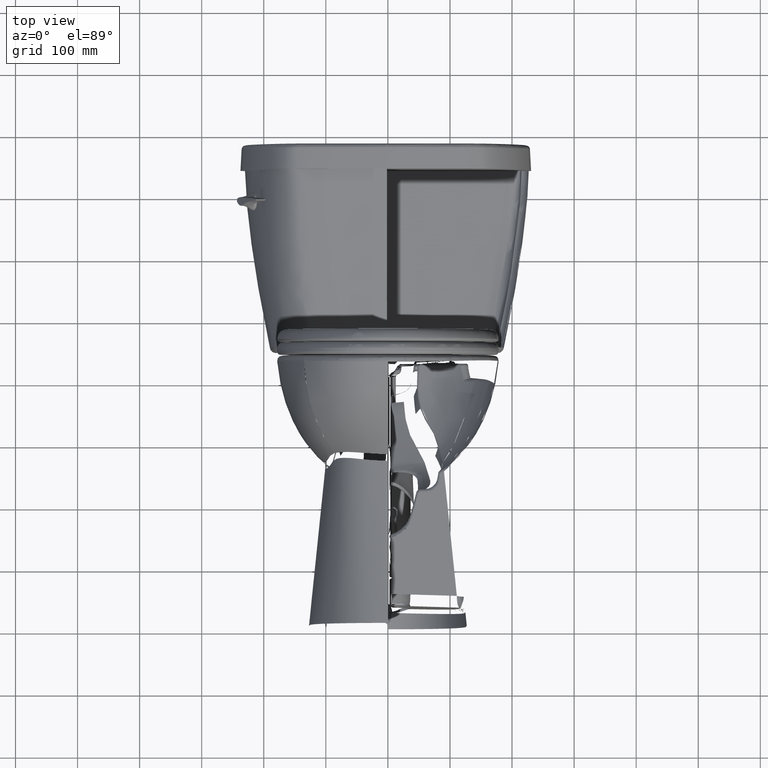
[diagram: clean part render]
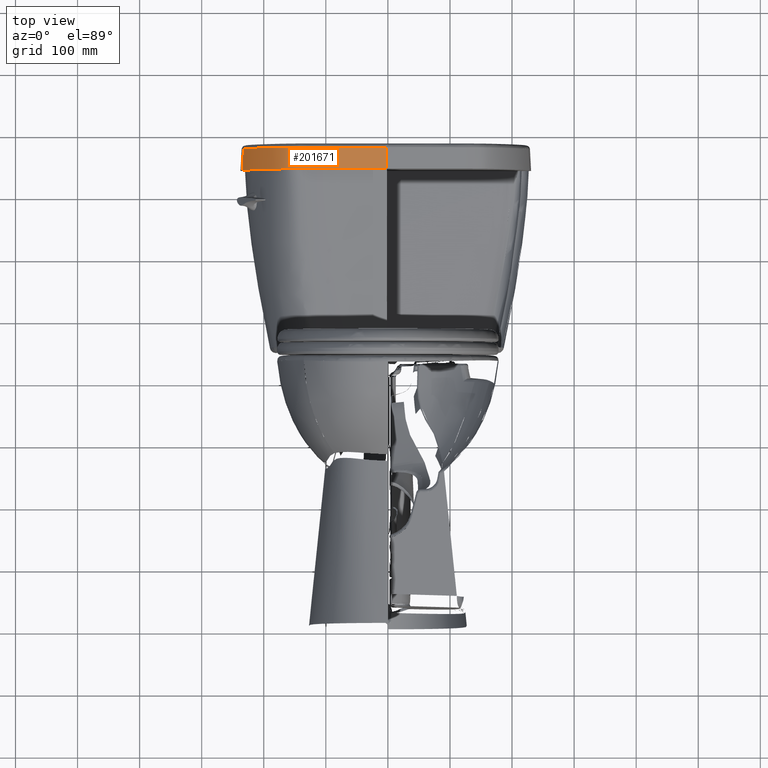
[diagram: same view with one face highlighted and labeled with its STEP entity id]
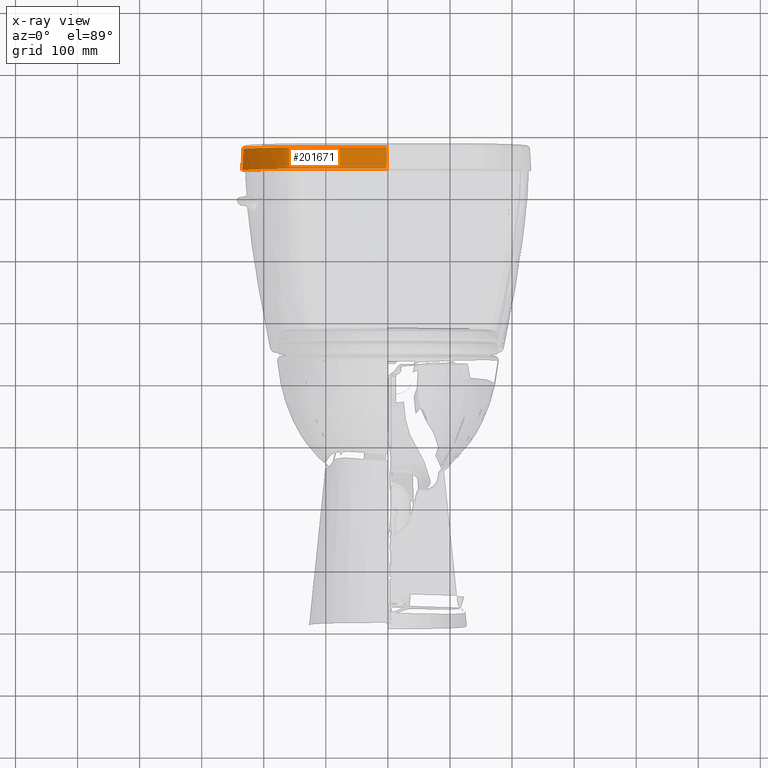
[diagram: x-ray of the same camera — body ghosted, the highlighted face saturated]
A machine part, top view. The second image highlights one B-rep face of the part: STEP entity #201671.
The next image is the same camera in x-ray: the body ghosted, the highlighted face saturated — about 0% of this face is hidden behind the body in this view.
In plain terms, the highlighted face is a freeform B-spline surface patch.
Its self-contained STEP definition (entity closure, byte-faithful):
#463 = CARTESIAN_POINT ( 'NONE',  ( -7.394844773976379000, 9.814377538845276300, 29.35590368022165500 ) ) ;
#1232 = CARTESIAN_POINT ( 'NONE',  ( -7.334836410566929900, 9.853938189715355700, 30.72716702226692600 ) ) ;
#2043 = CARTESIAN_POINT ( 'NONE',  ( -6.573769690913385600, 8.890552196837402800, 30.72716702283425100 ) ) ;
#2824 = CARTESIAN_POINT ( 'NONE',  ( -0.06327540398421259400, 8.144003682902756200, 30.72716702770236500 ) ) ;
#3607 = CARTESIAN_POINT ( 'NONE',  ( -8.874723170444882600, 13.26844839627992000, 30.72716702112204600 ) ) ;
#4400 = CARTESIAN_POINT ( 'NONE',  ( -5.850028966925196800, 8.430925996149213100, 30.72716702337441000 ) ) ;
#5484 = CARTESIAN_POINT ( 'NONE',  ( -5.039755826007875000, 8.231776056590550900, 29.35590368198031500 ) ) ;
#6261 = CARTESIAN_POINT ( 'NONE',  ( -7.240393396204725100, 9.588536752392519300, 29.35590368033701500 ) ) ;
#7840 = CARTESIAN_POINT ( 'NONE',  ( -6.015476080874016400, 8.415504344839764200, 29.35590368125078700 ) ) ;
#8600 = CARTESIAN_POINT ( 'NONE',  ( -5.871656456779527700, 8.362302139305512600, 29.35590368135827100 ) ) ;
#12401 = CARTESIAN_POINT ( 'NONE',  ( -0.08855453651539167700, 8.071997726936739800, 29.35590368570880700 ) ) ;
#12428 = CARTESIAN_POINT ( 'NONE',  ( -7.683224440023622900, 10.27691001581496300, 29.35590368000708500 ) ) ;
#13198 = CARTESIAN_POINT ( 'NONE',  ( -5.039755826007875000, 8.231776056590550900, 29.35590368198031500 ) ) ;
#14253 = CARTESIAN_POINT ( 'NONE',  ( -0.08895492052590056600, 8.143432810364680900, 30.71898767474748100 ) ) ;
#15019 = CARTESIAN_POINT ( 'NONE',  ( -6.936280250251925800, 9.303819493808385100, 30.71898766962832600 ) ) ;
#15794 = CARTESIAN_POINT ( 'NONE',  ( -6.054670585153695900, 8.512012217098263300, 30.71898767028592300 ) ) ;
#16589 = CARTESIAN_POINT ( 'NONE',  ( -4.365214944995866400, 8.249905939252945700, 30.71898767154902600 ) ) ;
#17940 = CARTESIAN_POINT ( 'NONE',  ( -6.085764783834646300, 8.447625068744487800, 29.35590368119802900 ) ) ;
#18728 = CARTESIAN_POINT ( 'NONE',  ( -6.992198503177165800, 9.259359699896457100, 29.35590368052165600 ) ) ;
#19522 = CARTESIAN_POINT ( 'NONE',  ( -5.367851655240158100, 8.338650010559449700, 30.72716702373504600 ) ) ;
#20298 = CARTESIAN_POINT ( 'NONE',  ( -2.226265052144882400, 8.162274668791338800, 30.72716702608464700 ) ) ;
#21090 = CARTESIAN_POINT ( 'NONE',  ( -7.408347902826771600, 9.967540687325589800, 30.72716702221220700 ) ) ;
#21885 = CARTESIAN_POINT ( 'NONE',  ( -7.102107380980315900, 9.519804956283071100, 30.72716702244015600 ) ) ;
#22669 = CARTESIAN_POINT ( 'NONE',  ( -8.430776281259841900, 12.00872331068819000, 30.72716702145157400 ) ) ;
#23711 = CARTESIAN_POINT ( 'NONE',  ( -5.655914518433070800, 8.308325283343700500, 29.35590368151929000 ) ) ;
#24500 = CARTESIAN_POINT ( 'NONE',  ( -4.370146060366142400, 8.178639721470473100, 29.35590368248070800 ) ) ;
#25293 = CARTESIAN_POINT ( 'NONE',  ( -0.08855621981209335600, 8.071997717613896800, 29.35590368568347600 ) ) ;
#26070 = CARTESIAN_POINT ( 'NONE',  ( -5.799464465437008400, 8.341576496050395300, 29.35590368141220800 ) ) ;
#30697 = CARTESIAN_POINT ( 'NONE',  ( -8.062577761232283500, 10.99867149519449000, 29.35590367972480400 ) ) ;
#32516 = CARTESIAN_POINT ( 'NONE',  ( -6.416888059000590300, 8.746931945899355300, 30.71898767001538000 ) ) ;
#33268 = CARTESIAN_POINT ( 'NONE',  ( -6.671087508906970800, 8.990793828501129100, 30.71898766982598200 ) ) ;
#34027 = CARTESIAN_POINT ( 'NONE',  ( -5.987405642848138100, 8.481287754516957400, 30.71898767033632900 ) ) ;
#34805 = CARTESIAN_POINT ( 'NONE',  ( -7.998215824511513400, 11.02970988272904800, 30.71898766883734700 ) ) ;
#35929 = VERTEX_POINT ( 'NONE', #174448 ) ;
#36150 = CARTESIAN_POINT ( 'NONE',  ( -6.404975079362205100, 8.645598433367716500, 29.35590368095984500 ) ) ;
#37726 = CARTESIAN_POINT ( 'NONE',  ( -5.166945689877953100, 8.316253643626771100, 30.72716702388504100 ) ) ;
#38014 = CARTESIAN_POINT ( 'NONE',  ( -9.016450329389764200, 13.50837074369763800, 29.35590367901653900 ) ) ;
#38528 = CARTESIAN_POINT ( 'NONE',  ( -7.752018407444882800, 10.54882465640000100, 30.72716702195630100 ) ) ;
#39345 = CARTESIAN_POINT ( 'NONE',  ( -6.670772527649606200, 8.991084733014961500, 30.72716702276181200 ) ) ;
#40140 = CARTESIAN_POINT ( 'NONE',  ( -9.016450329389764200, 13.50837074369763800, 29.35590367901653900 ) ) ;
#40940 = EDGE_LOOP ( 'NONE', ( #175265, #166305, #180774, #201368 ) ) ;
#41203 = CARTESIAN_POINT ( 'NONE',  ( -6.283163321677165800, 8.559149098585432800, 29.35590368105079100 ) ) ;
#42786 = CARTESIAN_POINT ( 'NONE',  ( -5.376128434153543800, 8.267262656462598600, 29.35590368172874100 ) ) ;
#46836 = B_SPLINE_SURFACE_WITH_KNOTS ( 'NONE', 1, 3, ( 
 ( #139414, #48951, #144161, #49690, #162411, #176722, #72616, #195038, #67921, #107598, #85335, #212607, #90096, #121135, #13198, #71849, #103633, #86117, #216492, #234737, #54407, #126616, #181497, #17940, #182269, #55175, #36150, #211845, #109161, #198984, #230801, #193505, #217274, #108368, #18728, #199779, #90863, #67151, #463, #127391, #12428, #145716, #30697, #157680, #163962, #194262, #218821, #59156, #110708, #40140, #148078, #203732, #74169 ),
 ( #93223, #167919, #2824, #184635, #113086, #130566, #20298, #146477, #73401, #109941, #75754, #94003, #221205, #128156, #165531, #37726, #19522, #91625, #202935, #55968, #56766, #4400, #183051, #164740, #201359, #57565, #166331, #183860, #131356, #2043, #39345, #92420, #112288, #221986, #202151, #128951, #21885, #147292, #1232, #21090, #219616, #38528, #220403, #148868, #74951, #22669, #149647, #111497, #3607, #167134, #129767, #58355, #185451 ) ),
 .UNSPECIFIED., .F., .F., .F.,
 ( 2, 2 ),
 ( 4, 3, 2, 2, 2, 2, 2, 2, 2, 2, 2, 2, 2, 2, 2, 2, 2, 2, 2, 2, 2, 2, 2, 2, 2, 4 ),
 ( 0.1668306279719999900, 0.8806789820920000200 ),
 ( -0.006000394961881000200, 0.0000000000000000000, 0.1250000000000000000, 0.2500000000000000000, 0.3125000000000000000, 0.3437500000000000000, 0.3750000000000000000, 0.4062500000000000000, 0.4218750000000000000, 0.4375000000000000000, 0.4531250000000000000, 0.4687500000000000000, 0.4843750000000000000, 0.5000000000000000000, 0.5156250000000000000, 0.5312500000000000000, 0.5468750000000000000, 0.5625000000000000000, 0.5937500000000000000, 0.6250000000000000000, 0.6875000000000000000, 0.7500000000000000000, 0.8125000000000000000, 0.8750000000000000000, 0.9375000000000000000, 1.000000000000000000 ),
 .UNSPECIFIED. ) ;
#47560 = DIRECTION ( 'NONE',  ( -0.05173752758674615000, -0.007891794699233210100, -0.9986295348204136100 ) ) ;
#48339 = EDGE_CURVE ( 'NONE', #180117, #61341, #142599, .T. ) ;
#48951 = CARTESIAN_POINT ( 'NONE',  ( -0.03712507201232283200, 8.072282525522835400, 29.35590368572165700 ) ) ;
#49690 = CARTESIAN_POINT ( 'NONE',  ( -0.08855958640551181400, 8.071997698970866600, 29.35590368568346900 ) ) ;
#49984 = CARTESIAN_POINT ( 'NONE',  ( -5.642251355499555900, 8.378488029529668400, 30.71898767059426300 ) ) ;
#50730 = CARTESIAN_POINT ( 'NONE',  ( -9.163591568707424500, 14.58498170078712200, 30.71898766804979200 ) ) ;
#51239 = CARTESIAN_POINT ( 'NONE',  ( -0.08855453651539167700, 8.071997726936739800, 29.35590368570880700 ) ) ;
#51484 = CARTESIAN_POINT ( 'NONE',  ( -7.102452624445827000, 9.519550753591749600, 30.71898766950430100 ) ) ;
#52251 = CARTESIAN_POINT ( 'NONE',  ( -5.166989425946020700, 8.315827202173338200, 30.71898767094941700 ) ) ;
#53040 = CARTESIAN_POINT ( 'NONE',  ( -8.112087092729026900, 11.27316820641764700, 30.71898766875269600 ) ) ;
#54407 = CARTESIAN_POINT ( 'NONE',  ( -5.799464465437008400, 8.341576496050395300, 29.35590368141220800 ) ) ;
#55175 = CARTESIAN_POINT ( 'NONE',  ( -6.283163321677165800, 8.559149098585432800, 29.35590368105079100 ) ) ;
#55465 = CARTESIAN_POINT ( 'NONE',  ( -8.780848370578739900, 12.73524243035590700, 29.35590367919133600 ) ) ;
#55968 = CARTESIAN_POINT ( 'NONE',  ( -5.642169368011811200, 8.378909049707875300, 30.72716702352992300 ) ) ;
#56248 = CARTESIAN_POINT ( 'NONE',  ( -7.468979549909450500, 9.928946406463779800, 29.35590368016653400 ) ) ;
#56766 = CARTESIAN_POINT ( 'NONE',  ( -5.780775517031496100, 8.411015103963386300, 30.72716702342637500 ) ) ;
#57565 = CARTESIAN_POINT ( 'NONE',  ( -6.243912704901574400, 8.619416780058662300, 30.72716702308032000 ) ) ;
#57829 = CARTESIAN_POINT ( 'NONE',  ( -9.234210945515535200, 14.57420975922839200, 29.35590368045584600 ) ) ;
#58355 = CARTESIAN_POINT ( 'NONE',  ( -9.122131490185040500, 14.31601786087559000, 30.72716702093937300 ) ) ;
#59156 = CARTESIAN_POINT ( 'NONE',  ( -8.780848370578739900, 12.73524243035590700, 29.35590367919133600 ) ) ;
#60219 = CARTESIAN_POINT ( 'NONE',  ( -6.723578936059055000, 8.942314775418109800, 29.35590368072204700 ) ) ;
#61002 = CARTESIAN_POINT ( 'NONE',  ( -4.236281670657480600, 8.169627138600395400, 29.35590368258110800 ) ) ;
#61341 = VERTEX_POINT ( 'NONE', #83929 ) ;
#67151 = CARTESIAN_POINT ( 'NONE',  ( -7.240393396204725100, 9.588536752392519300, 29.35590368033701500 ) ) ;
#67304 = CARTESIAN_POINT ( 'NONE',  ( -9.198689377031497500, 14.57962804918051200, 30.04153534988248400 ) ) ;
#67921 = CARTESIAN_POINT ( 'NONE',  ( -3.566393889946851000, 8.132151935959449000, 29.35590368308189100 ) ) ;
#68209 = CARTESIAN_POINT ( 'NONE',  ( -6.717426826963413000, 9.042073839321830100, 30.71898766979133200 ) ) ;
#68976 = CARTESIAN_POINT ( 'NONE',  ( -5.780886993434547700, 8.410600914460843600, 30.71898767049069800 ) ) ;
#69720 = CARTESIAN_POINT ( 'NONE',  ( -7.408709560303761600, 9.967310478995216300, 30.71898766927634100 ) ) ;
#70492 = CARTESIAN_POINT ( 'NONE',  ( -2.760636719723525100, 8.172469147903557400, 30.71898767274905100 ) ) ;
#71274 = CARTESIAN_POINT ( 'NONE',  ( -8.875134724634854400, 13.26832809890897200, 30.71898766818614100 ) ) ;
#71849 = CARTESIAN_POINT ( 'NONE',  ( -5.174278014003937700, 8.244761003902361600, 29.35590368187952800 ) ) ;
#72616 = CARTESIAN_POINT ( 'NONE',  ( -2.227610177728346600, 8.090421929640552200, 29.35590368408346500 ) ) ;
#73401 = CARTESIAN_POINT ( 'NONE',  ( -3.563150350158268000, 8.203945079109056200, 30.72716702508464700 ) ) ;
#73670 = CARTESIAN_POINT ( 'NONE',  ( -7.815259718751969200, 10.51465102142638000, 29.35590367990866400 ) ) ;
#74169 = CARTESIAN_POINT ( 'NONE',  ( -9.234210945598427100, 14.57420975921575000, 29.35590367885591000 ) ) ;
#74951 = CARTESIAN_POINT ( 'NONE',  ( -8.327783893185039000, 11.76239484433661400, 30.72716702152795400 ) ) ;
#75754 = CARTESIAN_POINT ( 'NONE',  ( -4.231609108984251600, 8.241340576218110700, 30.72716702458464500 ) ) ;
#76034 = CARTESIAN_POINT ( 'NONE',  ( -8.177030743503937800, 11.24339532183307000, 29.35590367963976600 ) ) ;
#79166 = CARTESIAN_POINT ( 'NONE',  ( -0.08855790310880258500, 8.071997708292382600, 29.35590368568347200 ) ) ;
#79954 = CARTESIAN_POINT ( 'NONE',  ( -6.770767130125984900, 8.994545491981496000, 29.35590368068701000 ) ) ;
#80742 = CARTESIAN_POINT ( 'NONE',  ( -5.174278014003937700, 8.244761003902361600, 29.35590368187952800 ) ) ;
#83929 = CARTESIAN_POINT ( 'NONE',  ( -9.234210945515535200, 14.57420975922839200, 29.35590368045584600 ) ) ;
#85335 = CARTESIAN_POINT ( 'NONE',  ( -4.236281670657480600, 8.169627138600395400, 29.35590368258110800 ) ) ;
#86117 = CARTESIAN_POINT ( 'NONE',  ( -5.444712578622047200, 8.275290445675985000, 29.35590368167716900 ) ) ;
#86406 = CARTESIAN_POINT ( 'NONE',  ( -2.226273075590527600, 8.161846079405986400, 30.71898767314904400 ) ) ;
#87195 = CARTESIAN_POINT ( 'NONE',  ( -8.947362416051030100, 13.52663743178338900, 30.71898766813259800 ) ) ;
#88728 = CARTESIAN_POINT ( 'NONE',  ( -1.158403017494239500, 8.145683290152414100, 30.71898767394747400 ) ) ;
#90096 = CARTESIAN_POINT ( 'NONE',  ( -4.637553417401575100, 8.198051141128347700, 29.35590368228110600 ) ) ;
#90863 = CARTESIAN_POINT ( 'NONE',  ( -7.159987229429134500, 9.477188035997244200, 29.35590368039685300 ) ) ;
#91625 = CARTESIAN_POINT ( 'NONE',  ( -5.435644053748031700, 8.346594151313778900, 30.72716702368425200 ) ) ;
#92420 = CARTESIAN_POINT ( 'NONE',  ( -6.717106751921259700, 9.042359039009054900, 30.72716702272716600 ) ) ;
#92928 = CARTESIAN_POINT ( 'NONE',  ( -9.163591568707424500, 14.58498170078712200, 30.71898766804979200 ) ) ;
#93223 = CARTESIAN_POINT ( 'NONE',  ( -0.01191112550811023800, 8.144288119428347600, 30.72716702774094700 ) ) ;
#94003 = CARTESIAN_POINT ( 'NONE',  ( -4.365185355232283900, 8.250333580948032300, 30.72716702448464700 ) ) ;
#94285 = CARTESIAN_POINT ( 'NONE',  ( -8.062577761232283500, 10.99867149519449000, 29.35590367972480400 ) ) ;
#96663 = CARTESIAN_POINT ( 'NONE',  ( -4.771448086720472900, 8.208429058583858400, 29.35590368218071300 ) ) ;
#97464 = CARTESIAN_POINT ( 'NONE',  ( -5.444712578622047200, 8.275290445675985000, 29.35590368167716900 ) ) ;
#98255 = CARTESIAN_POINT ( 'NONE',  ( -2.227610177728346600, 8.090421929640552200, 29.35590368408346500 ) ) ;
#103146 = CARTESIAN_POINT ( 'NONE',  ( -0.08895442262833573600, 8.143432813121863800, 30.71898767474748100 ) ) ;
#103633 = CARTESIAN_POINT ( 'NONE',  ( -5.376128434153543800, 8.267262656462598600, 29.35590368172874100 ) ) ;
#103920 = CARTESIAN_POINT ( 'NONE',  ( -0.6239688823479422300, 8.140470094001328100, 30.71898767434747800 ) ) ;
#104687 = CARTESIAN_POINT ( 'NONE',  ( -6.523233282829910900, 8.840900360729312600, 30.71898766993622900 ) ) ;
#106227 = CARTESIAN_POINT ( 'NONE',  ( -5.435698145958680200, 8.346168836820082100, 30.71898767074862100 ) ) ;
#106997 = CARTESIAN_POINT ( 'NONE',  ( -6.182951239804576300, 8.580904133280199600, 30.71898767019023100 ) ) ;
#107598 = CARTESIAN_POINT ( 'NONE',  ( -3.834379650434252000, 8.145133143857874500, 29.35590368288149700 ) ) ;
#108368 = CARTESIAN_POINT ( 'NONE',  ( -6.906003570370079300, 9.152882103423229100, 29.35590368058622300 ) ) ;
#109161 = CARTESIAN_POINT ( 'NONE',  ( -6.572195845618110400, 8.788835875487796700, 29.35590368083504100 ) ) ;
#109941 = CARTESIAN_POINT ( 'NONE',  ( -3.830609658984645400, 8.216901588505905400, 30.72716702488465000 ) ) ;
#110708 = CARTESIAN_POINT ( 'NONE',  ( -8.943719969874015500, 13.24828061819015800, 29.35590367907047200 ) ) ;
#111497 = CARTESIAN_POINT ( 'NONE',  ( -8.712853055240158200, 12.75856483783425200, 30.72716702124212400 ) ) ;
#112288 = CARTESIAN_POINT ( 'NONE',  ( -6.806985548874015600, 9.146117523398819700, 30.72716702266023600 ) ) ;
#113086 = CARTESIAN_POINT ( 'NONE',  ( -0.6239668923555119500, 8.140898773318111700, 30.72716702728307300 ) ) ;
#114155 = CARTESIAN_POINT ( 'NONE',  ( -5.584732990169292100, 8.295832525187401900, 29.35590368157244300 ) ) ;
#114937 = CARTESIAN_POINT ( 'NONE',  ( -6.085764783834646300, 8.447625068744487800, 29.35590368119802900 ) ) ;
#115735 = CARTESIAN_POINT ( 'NONE',  ( -7.034768101578740700, 9.313465118329922600, 29.35590368049015800 ) ) ;
#115760 = EDGE_CURVE ( 'NONE', #180248, #35929, #223221, .T. ) ;
#121135 = CARTESIAN_POINT ( 'NONE',  ( -4.771448086720472900, 8.208429058583858400, 29.35590368218071300 ) ) ;
#122165 = CARTESIAN_POINT ( 'NONE',  ( -4.765703139255176500, 8.279635300308852300, 30.71898767124981700 ) ) ;
#122689 = CARTESIAN_POINT ( 'NONE',  ( -0.08868783383291876900, 8.095809422320998600, 29.81026501538836400 ) ) ;
#122934 = CARTESIAN_POINT ( 'NONE',  ( -8.623737736699386100, 12.50671580569433100, 30.71898766837276500 ) ) ;
#123720 = CARTESIAN_POINT ( 'NONE',  ( -4.231636980021030500, 8.240912817742744400, 30.71898767164902800 ) ) ;
#124484 = CARTESIAN_POINT ( 'NONE',  ( -5.573008927340758600, 8.366313392200657600, 30.71898767064584800 ) ) ;
#125255 = CARTESIAN_POINT ( 'NONE',  ( -7.621273267933983000, 10.31254361303517400, 30.71898766911806800 ) ) ;
#126616 = CARTESIAN_POINT ( 'NONE',  ( -5.871656456779527700, 8.362302139305512600, 29.35590368135827100 ) ) ;
#127391 = CARTESIAN_POINT ( 'NONE',  ( -7.468979549909450500, 9.928946406463779800, 29.35590368016653400 ) ) ;
#128156 = CARTESIAN_POINT ( 'NONE',  ( -4.765668665992126100, 8.280062582110236500, 30.72716702418543700 ) ) ;
#128951 = CARTESIAN_POINT ( 'NONE',  ( -6.978083256204725700, 9.357644492963780500, 30.72716702253267600 ) ) ;
#129767 = CARTESIAN_POINT ( 'NONE',  ( -9.070551016787403500, 14.05078413422598500, 30.72716702097716600 ) ) ;
#130566 = CARTESIAN_POINT ( 'NONE',  ( -1.158398066391732200, 8.146111926037008300, 30.72716702688307300 ) ) ;
#130850 = CARTESIAN_POINT ( 'NONE',  ( -8.393918645192913500, 11.73425703243071000, 29.35590367947834900 ) ) ;
#131356 = CARTESIAN_POINT ( 'NONE',  ( -6.522939476956692900, 8.841212780069293200, 30.72716702287204500 ) ) ;
#131627 = CARTESIAN_POINT ( 'NONE',  ( -8.690835586074802800, 12.48216616890157500, 29.35590367925787800 ) ) ;
#133214 = CARTESIAN_POINT ( 'NONE',  ( -4.637553417401575100, 8.198051141128347700, 29.35590368228110600 ) ) ;
#134792 = CARTESIAN_POINT ( 'NONE',  ( -6.219454138381890700, 8.519421676052363800, 29.35590368109842500 ) ) ;
#136600 = FACE_OUTER_BOUND ( 'NONE', #40940, .T. ) ;
#139014 = EDGE_CURVE ( 'NONE', #35929, #180117, #148421, .T. ) ;
#139414 = CARTESIAN_POINT ( 'NONE',  ( -0.01140781431015748000, 8.072424937801574900, 29.35590368574094500 ) ) ;
#141265 = CARTESIAN_POINT ( 'NONE',  ( -9.070970872891182400, 14.05069693187080800, 30.71898766804125800 ) ) ;
#142021 = CARTESIAN_POINT ( 'NONE',  ( -6.244146828164200100, 8.619057293574716300, 30.71898767014455000 ) ) ;
#142561 = CARTESIAN_POINT ( 'NONE',  ( -0.08882112920390011800, 8.119621117716041800, 30.26462634506792400 ) ) ;
#142599 = LINE ( 'NONE', #67304, #148307 ) ;
#142794 = CARTESIAN_POINT ( 'NONE',  ( -0.08895516947468297400, 8.143432808986087700, 30.71898767474748100 ) ) ;
#143566 = CARTESIAN_POINT ( 'NONE',  ( -6.807313483570180100, 9.145841397105915100, 30.71898766972439200 ) ) ;
#144161 = CARTESIAN_POINT ( 'NONE',  ( -0.06284232870893700900, 8.072140112249607900, 29.35590368570275600 ) ) ;
#145716 = CARTESIAN_POINT ( 'NONE',  ( -7.815259718751969200, 10.51465102142638000, 29.35590367990866400 ) ) ;
#146477 = CARTESIAN_POINT ( 'NONE',  ( -2.760625700186220700, 8.172897703983071700, 30.72716702568464700 ) ) ;
#147292 = CARTESIAN_POINT ( 'NONE',  ( -7.181763125496063400, 9.630112468321261300, 30.72716702238070900 ) ) ;
#147576 = CARTESIAN_POINT ( 'NONE',  ( -9.140939626811023900, 14.03616471458070900, 29.35590367892441300 ) ) ;
#148078 = CARTESIAN_POINT ( 'NONE',  ( -9.140939626811023900, 14.03616471458070900, 29.35590367892441300 ) ) ;
#148307 = VECTOR ( 'NONE', #47560, 39.37007874015748900 ) ;
#148421 = B_SPLINE_CURVE_WITH_KNOTS ( 'NONE', 3,
 ( #103146, #233388, #14253, #142794, #103920, #88728, #86406, #70492, #215912, #161064, #123720, #16589, #158760, #122165, #177768, #52251, #213630, #106227, #124484, #49984, #68976, #234155, #34027, #15794, #106997, #142021, #179338, #32516, #104687, #161841, #33268, #68209, #143566, #197633, #15019, #160282, #51484, #177012, #195321, #69720, #125255, #231851, #34805, #53040, #159508, #180108, #122934, #196073, #71274, #87195, #141265, #231089, #50730 ),
 .UNSPECIFIED., .F., .F.,
 ( 4, 3, 2, 2, 2, 2, 2, 2, 2, 2, 2, 2, 2, 2, 2, 2, 2, 2, 2, 2, 2, 2, 2, 2, 2, 4 ),
 ( -5.816411250204156900E-008, 0.0000000000000000000, 0.1250000000000000000, 0.2500000000000000000, 0.3125000000000000000, 0.3437500000000000000, 0.3750000000000000000, 0.4062500000000000000, 0.4218750000000000000, 0.4375000000000000000, 0.4531250000000000000, 0.4687500000000000000, 0.4843750000000000000, 0.5000000000000000000, 0.5156250000000000000, 0.5312500000000000000, 0.5468750000000000000, 0.5625000000000000000, 0.5937500000000000000, 0.6250000000000000000, 0.6875000000000000000, 0.7500000000000000000, 0.8125000000000000000, 0.8750000000000000000, 0.9375000000000000000, 0.9999999999999998900 ),
 .UNSPECIFIED. ) ;
#148868 = CARTESIAN_POINT ( 'NONE',  ( -8.111697390374017000, 11.27334686226929300, 30.72716702168858300 ) ) ;
#149647 = CARTESIAN_POINT ( 'NONE',  ( -8.623335107811023200, 12.50686311880590700, 30.72716702130865900 ) ) ;
#151506 = CARTESIAN_POINT ( 'NONE',  ( -3.834379650434252000, 8.145133143857874500, 29.35590368288149700 ) ) ;
#152310 = CARTESIAN_POINT ( 'NONE',  ( -6.992198503177165800, 9.259359699896457100, 29.35590368052165600 ) ) ;
#153103 = CARTESIAN_POINT ( 'NONE',  ( -6.404975079362205100, 8.645598433367716500, 29.35590368095984500 ) ) ;
#157680 = CARTESIAN_POINT ( 'NONE',  ( -8.177030743503937800, 11.24339532183307000, 29.35590367963976600 ) ) ;
#158760 = CARTESIAN_POINT ( 'NONE',  ( -4.632140469922488200, 8.269282382813989000, 30.71898767134942400 ) ) ;
#159508 = CARTESIAN_POINT ( 'NONE',  ( -8.328178375748244400, 11.76222700706760300, 30.71898766859206400 ) ) ;
#160282 = CARTESIAN_POINT ( 'NONE',  ( -6.978421371679859300, 9.357380970497645800, 30.71898766959682800 ) ) ;
#161064 = CARTESIAN_POINT ( 'NONE',  ( -3.830632146343335700, 8.216473501922944700, 30.71898767194903700 ) ) ;
#161841 = CARTESIAN_POINT ( 'NONE',  ( -6.574071662775574900, 8.890247809547988200, 30.71898766989842900 ) ) ;
#162411 = CARTESIAN_POINT ( 'NONE',  ( -0.6243005133267717200, 8.069030957219684600, 29.35590368528268000 ) ) ;
#163962 = CARTESIAN_POINT ( 'NONE',  ( -8.393918645192913500, 11.73425703243071000, 29.35590367947834900 ) ) ;
#164740 = CARTESIAN_POINT ( 'NONE',  ( -6.054484000594488400, 8.512398580092126500, 30.72716702322165700 ) ) ;
#165531 = CARTESIAN_POINT ( 'NONE',  ( -5.033075580929134300, 8.303331194005117800, 30.72716702398543400 ) ) ;
#166305 = ORIENTED_EDGE ( 'NONE', *, *, #227199, .T. ) ;
#166331 = CARTESIAN_POINT ( 'NONE',  ( -6.361041086775590400, 8.702542341795275900, 30.72716702299291200 ) ) ;
#167134 = CARTESIAN_POINT ( 'NONE',  ( -8.946947845539369800, 13.52674704328937100, 30.72716702106850300 ) ) ;
#167919 = CARTESIAN_POINT ( 'NONE',  ( -0.03759326474338583300, 8.144145900665748200, 30.72716702772165600 ) ) ;
#168192 = CARTESIAN_POINT ( 'NONE',  ( -3.566393889946851000, 8.132151935959449000, 29.35590368308189100 ) ) ;
#169765 = CARTESIAN_POINT ( 'NONE',  ( -2.762473118639763700, 8.101050548535038600, 29.35590368368346500 ) ) ;
#170561 = CARTESIAN_POINT ( 'NONE',  ( -6.861963593098425700, 9.099825125185432700, 29.35590368061890100 ) ) ;
#174448 = CARTESIAN_POINT ( 'NONE',  ( -0.08895442262833573600, 8.143432813121863800, 30.71898767474748100 ) ) ;
#175265 = ORIENTED_EDGE ( 'NONE', *, *, #48339, .T. ) ;
#176722 = CARTESIAN_POINT ( 'NONE',  ( -1.159228115592913600, 8.074251391317716300, 29.35590368488228200 ) ) ;
#177012 = CARTESIAN_POINT ( 'NONE',  ( -7.182112845102902400, 9.629864476237088400, 30.71898766944485700 ) ) ;
#177768 = CARTESIAN_POINT ( 'NONE',  ( -5.033115427456435100, 8.302904379763578600, 30.71898767104981000 ) ) ;
#179338 = CARTESIAN_POINT ( 'NONE',  ( -6.361303145579491100, 8.702202681053028900, 30.71898767005712100 ) ) ;
#180108 = CARTESIAN_POINT ( 'NONE',  ( -8.431173310406372000, 12.00856151135339700, 30.71898766851568000 ) ) ;
#180117 = VERTEX_POINT ( 'NONE', #92928 ) ;
#180248 = VERTEX_POINT ( 'NONE', #12401 ) ;
#180774 = ORIENTED_EDGE ( 'NONE', *, *, #115760, .T. ) ;
#181497 = CARTESIAN_POINT ( 'NONE',  ( -6.015476080874016400, 8.415504344839764200, 29.35590368125078700 ) ) ;
#182269 = CARTESIAN_POINT ( 'NONE',  ( -6.219454138381890700, 8.519421676052363800, 29.35590368109842500 ) ) ;
#182551 = CARTESIAN_POINT ( 'NONE',  ( -8.497337966350393400, 11.98159775463189200, 29.35590367940157500 ) ) ;
#183051 = CARTESIAN_POINT ( 'NONE',  ( -5.987237202736221100, 8.481682495948426500, 30.72716702327204900 ) ) ;
#183860 = CARTESIAN_POINT ( 'NONE',  ( -6.416614184814961600, 8.747261977209447500, 30.72716702295117800 ) ) ;
#184635 = CARTESIAN_POINT ( 'NONE',  ( -0.08895754321948819200, 8.143861464139764200, 30.72716702768307300 ) ) ;
#185451 = CARTESIAN_POINT ( 'NONE',  ( -9.163167808464567800, 14.58504633914527700, 30.72716702090905400 ) ) ;
#188090 = CARTESIAN_POINT ( 'NONE',  ( -1.159228115592913600, 8.074251391317716300, 29.35590368488228200 ) ) ;
#188867 = CARTESIAN_POINT ( 'NONE',  ( -6.906003570370079300, 9.152882103423229100, 29.35590368058622300 ) ) ;
#189671 = CARTESIAN_POINT ( 'NONE',  ( -0.08855958640551181400, 8.071997698970866600, 29.35590368568346900 ) ) ;
#192001 = B_SPLINE_CURVE_WITH_KNOTS ( 'NONE', 3,
 ( #57829, #221493, #147576, #38014, #203215, #55465, #131627, #182551, #130850, #76034, #94285, #73670, #200853, #56248, #201635, #6261, #226201, #115735, #152310, #188867, #170561, #79954, #60219, #223821, #223042, #207215, #153103, #41203, #134792, #114937, #7840, #8600, #26070, #23711, #114155, #97464, #42786, #80742, #5484, #96663, #133214, #24500, #61002, #151506, #168192, #169765, #98255, #188090, #208012, #189671, #79166, #25293, #206397 ),
 .UNSPECIFIED., .F., .F.,
 ( 4, 2, 2, 2, 2, 2, 2, 2, 2, 2, 2, 2, 2, 2, 2, 2, 2, 2, 2, 2, 2, 2, 2, 2, 3, 4 ),
 ( -0.006000394961881000200, 0.05649960503811900200, 0.1189996050381190000, 0.1814996050381189900, 0.2439996050381189900, 0.3064996050381190200, 0.3689996050381190200, 0.4002496050381190200, 0.4314996050381190200, 0.4471246050381190200, 0.4627496050381190200, 0.4783746050381190200, 0.4939996050381190200, 0.5096246050381190200, 0.5252496050381190200, 0.5408746050381190200, 0.5564996050381190200, 0.5721246050381190200, 0.5877496050381190200, 0.6189996050381190200, 0.6502496050381190200, 0.6814996050381190200, 0.7439996050381190200, 0.8689996050381190200, 0.9939996050381190200, 0.9939999977878131200 ),
 .UNSPECIFIED. ) ;
#193505 = CARTESIAN_POINT ( 'NONE',  ( -6.770767130125984900, 8.994545491981496000, 29.35590368068701000 ) ) ;
#194262 = CARTESIAN_POINT ( 'NONE',  ( -8.497337966350393400, 11.98159775463189200, 29.35590367940157500 ) ) ;
#195038 = CARTESIAN_POINT ( 'NONE',  ( -2.762473118639763700, 8.101050548535038600, 29.35590368368346500 ) ) ;
#195321 = CARTESIAN_POINT ( 'NONE',  ( -7.335194350262668200, 9.853702217152013900, 30.71898766933106400 ) ) ;
#196073 = CARTESIAN_POINT ( 'NONE',  ( -8.713258635747626700, 12.75842572363479000, 30.71898766830622700 ) ) ;
#197633 = CARTESIAN_POINT ( 'NONE',  ( -6.850874371045159200, 9.198316626341798100, 30.71898766969172100 ) ) ;
#198984 = CARTESIAN_POINT ( 'NONE',  ( -6.624395082456693700, 8.839521860448819300, 29.35590368079606400 ) ) ;
#199779 = CARTESIAN_POINT ( 'NONE',  ( -7.034768101578740700, 9.313465118329922600, 29.35590368049015800 ) ) ;
#200853 = CARTESIAN_POINT ( 'NONE',  ( -7.683224440023622900, 10.27691001581496300, 29.35590368000708500 ) ) ;
#201359 = CARTESIAN_POINT ( 'NONE',  ( -6.182732199677165100, 8.581273066318109600, 30.72716702312598600 ) ) ;
#201368 = ORIENTED_EDGE ( 'NONE', *, *, #139014, .T. ) ;
#201635 = CARTESIAN_POINT ( 'NONE',  ( -7.394844773976379000, 9.814377538845276300, 29.35590368022165500 ) ) ;
#201671 = ADVANCED_FACE ( 'NONE', ( #136600 ), #46836, .T. ) ;
#202151 = CARTESIAN_POINT ( 'NONE',  ( -6.935944705905512800, 9.304086280263780000, 30.72716702256417400 ) ) ;
#202935 = CARTESIAN_POINT ( 'NONE',  ( -5.572938575661416900, 8.366736321301969400, 30.72716702358149700 ) ) ;
#203215 = CARTESIAN_POINT ( 'NONE',  ( -8.943719969874015500, 13.24828061819015800, 29.35590367907047200 ) ) ;
#203732 = CARTESIAN_POINT ( 'NONE',  ( -9.192879460732283900, 14.30324620722047300, 29.35590367888622200 ) ) ;
#206397 = CARTESIAN_POINT ( 'NONE',  ( -0.08855453651539167700, 8.071997726936739800, 29.35590368570880700 ) ) ;
#207215 = CARTESIAN_POINT ( 'NONE',  ( -6.462529018669291900, 8.691932436987007900, 29.35590368091693100 ) ) ;
#208012 = CARTESIAN_POINT ( 'NONE',  ( -0.6243005133267717200, 8.069030957219684600, 29.35590368528268000 ) ) ;
#211845 = CARTESIAN_POINT ( 'NONE',  ( -6.462529018669291900, 8.691932436987007900, 29.35590368091693100 ) ) ;
#212607 = CARTESIAN_POINT ( 'NONE',  ( -4.370146060366142400, 8.178639721470473100, 29.35590368248070800 ) ) ;
#212657 = CARTESIAN_POINT ( 'NONE',  ( -0.08895442262833573600, 8.143432813121863800, 30.71898767474748100 ) ) ;
#213630 = CARTESIAN_POINT ( 'NONE',  ( -5.367901024820623600, 8.338224197116902700, 30.71898767079941100 ) ) ;
#215912 = CARTESIAN_POINT ( 'NONE',  ( -3.563169697322214900, 8.203516845203727900, 30.71898767214904100 ) ) ;
#216492 = CARTESIAN_POINT ( 'NONE',  ( -5.584732990169292100, 8.295832525187401900, 29.35590368157244300 ) ) ;
#217274 = CARTESIAN_POINT ( 'NONE',  ( -6.861963593098425700, 9.099825125185432700, 29.35590368061890100 ) ) ;
#218821 = CARTESIAN_POINT ( 'NONE',  ( -8.690835586074802800, 12.48216616890157500, 29.35590367925787800 ) ) ;
#219616 = CARTESIAN_POINT ( 'NONE',  ( -7.620901522314961000, 10.31275743681299400, 30.72716702205394100 ) ) ;
#220403 = CARTESIAN_POINT ( 'NONE',  ( -7.997829612803150700, 11.02989613238661400, 30.72716702177322600 ) ) ;
#221205 = CARTESIAN_POINT ( 'NONE',  ( -4.632107988866141400, 8.269709814630708400, 30.72716702428504100 ) ) ;
#221493 = CARTESIAN_POINT ( 'NONE',  ( -9.192879460732283900, 14.30324620722047300, 29.35590367888622200 ) ) ;
#221986 = CARTESIAN_POINT ( 'NONE',  ( -6.850543561511812200, 9.198589261778346700, 30.72716702262756200 ) ) ;
#223042 = CARTESIAN_POINT ( 'NONE',  ( -6.572195845618110400, 8.788835875487796700, 29.35590368083504100 ) ) ;
#223221 = B_SPLINE_CURVE_WITH_KNOTS ( 'NONE', 3,
 ( #51239, #122689, #142561, #212657 ),
 .UNSPECIFIED., .F., .F.,
 ( 4, 4 ),
 ( 0.0000000000000000000, 1.000000000000000000 ),
 .UNSPECIFIED. ) ;
#223821 = CARTESIAN_POINT ( 'NONE',  ( -6.624395082456693700, 8.839521860448819300, 29.35590368079606400 ) ) ;
#226201 = CARTESIAN_POINT ( 'NONE',  ( -7.159987229429134500, 9.477188035997244200, 29.35590368039685300 ) ) ;
#227199 = EDGE_CURVE ( 'NONE', #61341, #180248, #192001, .T. ) ;
#230801 = CARTESIAN_POINT ( 'NONE',  ( -6.723578936059055000, 8.942314775418109800, 29.35590368072204700 ) ) ;
#231089 = CARTESIAN_POINT ( 'NONE',  ( -9.122553489813309800, 14.31594168013071300, 30.71898766800346100 ) ) ;
#231851 = CARTESIAN_POINT ( 'NONE',  ( -7.752395631125737400, 10.54862081647153700, 30.71898766902042200 ) ) ;
#233388 = CARTESIAN_POINT ( 'NONE',  ( -0.08895467157711815800, 8.143432811743272400, 30.71898767474748100 ) ) ;
#234155 = CARTESIAN_POINT ( 'NONE',  ( -5.850157971228901100, 8.430516666498419900, 30.71898767043871800 ) ) ;
#234737 = CARTESIAN_POINT ( 'NONE',  ( -5.655914518433070800, 8.308325283343700500, 29.35590368151929000 ) ) ;